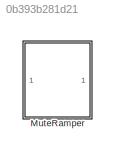
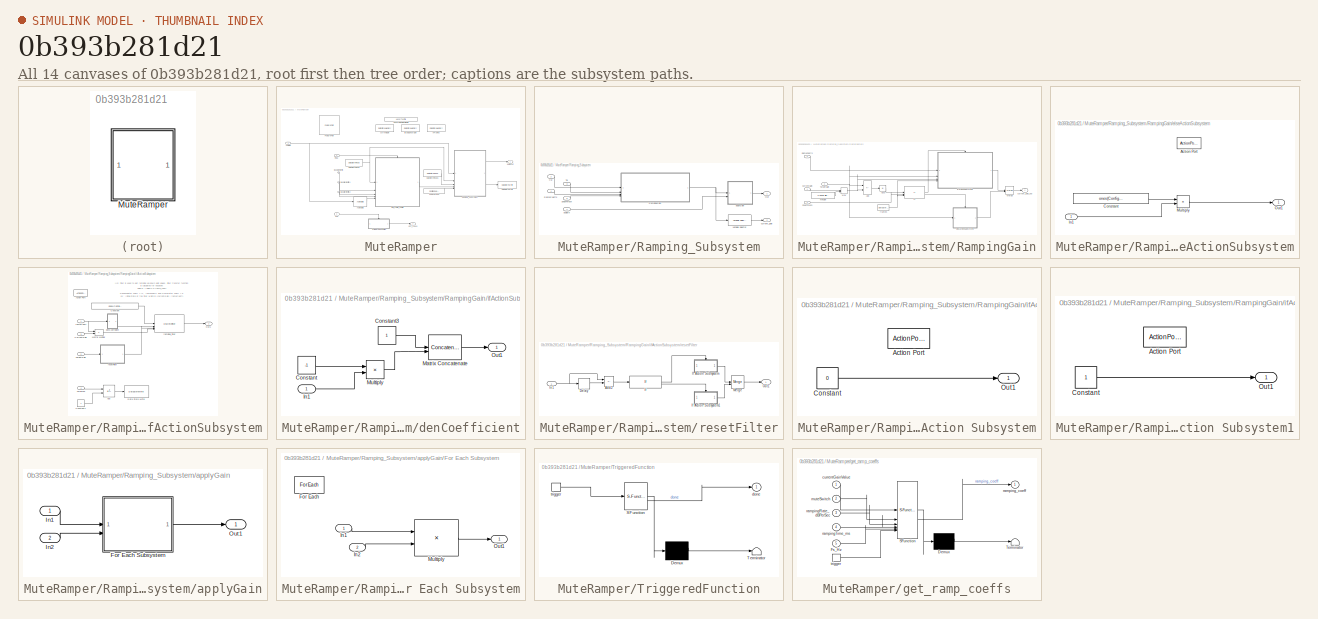
[diagram: thumbnail index - all 14 canvases of the model, root first then tree order]
MODEL slx_0b393b281d21
KIND library
CONFIG AbsTol = auto
CONFIG EnableMultiTasking = off
CONFIG FixedStep = auto
CONFIG MaxStep = auto
CONFIG MinStep = auto
CONFIG RelTol = 1e-3
CONFIG SampleTimeConstraint = Unconstrained
CONFIG SolverName = VariableStepAuto
CONFIG StartTime = 0.0
CONFIG StopTime = 10.0
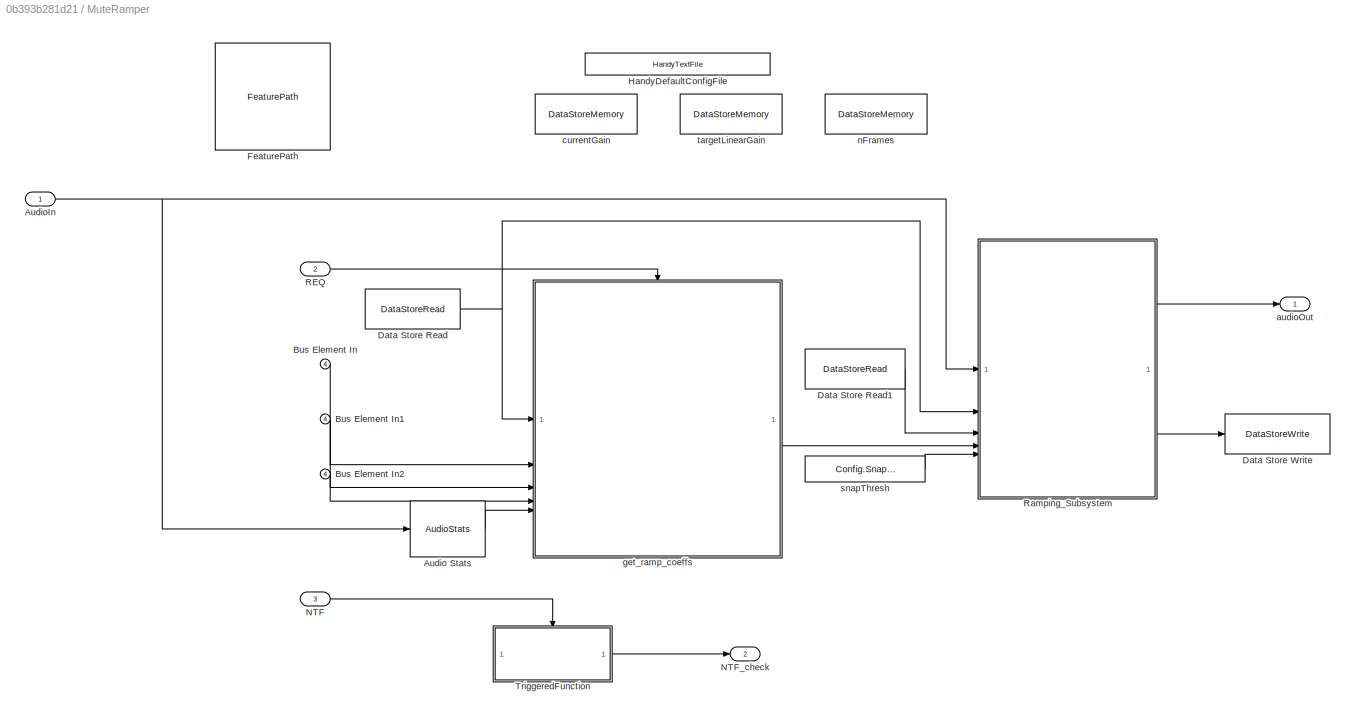
BLOCK [SubSystem] MuteRamper
BLOCK [Reference] MuteRamper/Audio Stats  REF=AudioStats/AudioStats
  SourceBlock = AudioStats/AudioStats
  SourceProductName = Bose Talaria
  SourceType = Talaria Audio Statistics
BLOCK [Inport] MuteRamper/AudioIn
BLOCK [Inport] MuteRamper/Bus Element In
  Port = 4
BLOCK [Inport] MuteRamper/Bus Element In1
  Port = 4
BLOCK [Inport] MuteRamper/Bus Element In2
  Port = 4
BLOCK [DataStoreRead] MuteRamper/Data Store Read
  DataStoreName = currentGain
  IndexOptions = Index vector (dialog)
  Indices = 1
  OutputSizes = 1
BLOCK [DataStoreRead] MuteRamper/Data Store Read1
  DataStoreName = targetLinearGain
  IndexOptions = Index vector (dialog)
  Indices = 1
  OutputSizes = 1
BLOCK [DataStoreWrite] MuteRamper/Data Store Write
  DataStoreName = currentGain
  IndexOptions = Index vector (dialog)
  Indices = 1
  OutputSizes = 1
BLOCK [Reference] MuteRamper/FeaturePath  REF=FeaturePath/FeaturePath
  SourceBlock = FeaturePath/FeaturePath
  SourceProductName = Bose Talaria
  SourceType = Talaria Feature Path
BLOCK [Reference] MuteRamper/HandyDefaultConfigFile  REF=HandyTextFile/HandyTextFile
  SourceBlock = HandyTextFile/HandyTextFile
  SourceProductName = Bose Talaria
  SourceType = Talaria Handy Text File
BLOCK [Inport] MuteRamper/NTF
  Port = 3
BLOCK [Outport] MuteRamper/NTF_check
  Port = 2
BLOCK [Inport] MuteRamper/REQ
  Port = 2
BLOCK [SubSystem] MuteRamper/Ramping_Subsystem
  TreatAsAtomicUnit = on
BLOCK [Inport] MuteRamper/Ramping_Subsystem/Cg
  Port = 2
BLOCK [Outport] MuteRamper/Ramping_Subsystem/Out
  VectorParamsAs1DForOutWhenUnconnected = off
BLOCK [Inport] MuteRamper/Ramping_Subsystem/RampCoeffs
  Port = 4
BLOCK [SubSystem] MuteRamper/Ramping_Subsystem/RampingGain
BLOCK [Abs] MuteRamper/Ramping_Subsystem/RampingGain/Abs3
  SaturateOnIntegerOverflow = off
BLOCK [Sum] MuteRamper/Ramping_Subsystem/RampingGain/Add
  IconShape = rectangular
  Inputs = +-
BLOCK [Inport] MuteRamper/Ramping_Subsystem/RampingGain/CurrentGain
BLOCK [If] MuteRamper/Ramping_Subsystem/RampingGain/If
  IfExpression = (u1>u2) & (u3>0)
  NumInputs = 3
BLOCK [MinMax] MuteRamper/Ramping_Subsystem/RampingGain/Max
  Function = max
  Inputs = 2
BLOCK [Merge] MuteRamper/Ramping_Subsystem/RampingGain/Merge
BLOCK [Inport] MuteRamper/Ramping_Subsystem/RampingGain/RampCoeffs
  Port = 3
BLOCK [Inport] MuteRamper/Ramping_Subsystem/RampingGain/SnapThresh
  Port = 4
BLOCK [Inport] MuteRamper/Ramping_Subsystem/RampingGain/TargetGain
  Port = 2
BLOCK [Outport] MuteRamper/Ramping_Subsystem/RampingGain/current_gain_out
  VectorParamsAs1DForOutWhenUnconnected = off
BLOCK [SubSystem] MuteRamper/Ramping_Subsystem/RampingGain/elseActionSubsystem
BLOCK [ActionPort] MuteRamper/Ramping_Subsystem/RampingGain/elseActionSubsystem/Action Port
BLOCK [Constant] MuteRamper/Ramping_Subsystem/RampingGain/elseActionSubsystem/Constant
  OutDataTypeStr = single
  Value = ones(Config.SamplesPerFrame,1)
  VectorParams1D = off
BLOCK [Inport] MuteRamper/Ramping_Subsystem/RampingGain/elseActionSubsystem/In1
BLOCK [Product] MuteRamper/Ramping_Subsystem/RampingGain/elseActionSubsystem/Multiply
BLOCK [Outport] MuteRamper/Ramping_Subsystem/RampingGain/elseActionSubsystem/Out1
  VectorParamsAs1DForOutWhenUnconnected = off
BLOCK [DataStoreRead] MuteRamper/Ramping_Subsystem/RampingGain/frames
  DataStoreName = nFrames
  IndexOptions = Index vector (dialog)
  Indices = 1
  OutputSizes = 1
BLOCK [SubSystem] MuteRamper/Ramping_Subsystem/RampingGain/ifActionSubsystem
BLOCK [ActionPort] MuteRamper/Ramping_Subsystem/RampingGain/ifActionSubsystem/Action Port
BLOCK [Sum] MuteRamper/Ramping_Subsystem/RampingGain/ifActionSubsystem/Add
  IconShape = rectangular
  Inputs = +-
BLOCK [Constant] MuteRamper/Ramping_Subsystem/RampingGain/ifActionSubsystem/Constant
  OutDataTypeStr = single
  Value = ones(Config.SamplesPerFrame,1)
  VectorParams1D = off
BLOCK [Constant] MuteRamper/Ramping_Subsystem/RampingGain/ifActionSubsystem/Constant1
  OutDataTypeStr = single
BLOCK [Inport] MuteRamper/Ramping_Subsystem/RampingGain/ifActionSubsystem/CurrentGain
  Port = 3
BLOCK [DataStoreWrite] MuteRamper/Ramping_Subsystem/RampingGain/ifActionSubsystem/Data Store Write
  DataStoreName = nFrames
  IndexOptions = Index vector (dialog)
  Indices = 1
  OutputSizes = 1
BLOCK [Product] MuteRamper/Ramping_Subsystem/RampingGain/ifActionSubsystem/Matrix Multiply
BLOCK [Outport] MuteRamper/Ramping_Subsystem/RampingGain/ifActionSubsystem/Out1
BLOCK [Inport] MuteRamper/Ramping_Subsystem/RampingGain/ifActionSubsystem/TargetGain
  Port = 2
BLOCK [SubSystem] MuteRamper/Ramping_Subsystem/RampingGain/ifActionSubsystem/denCoefficient
BLOCK [Constant] MuteRamper/Ramping_Subsystem/RampingGain/ifActionSubsystem/denCoefficient/Constant
  OutDataTypeStr = single
  Value = -1
BLOCK [Constant] MuteRamper/Ramping_Subsystem/RampingGain/ifActionSubsystem/denCoefficient/Constant3
  OutDataTypeStr = single
BLOCK [Inport] MuteRamper/Ramping_Subsystem/RampingGain/ifActionSubsystem/denCoefficient/In1
BLOCK [Concatenate] MuteRamper/Ramping_Subsystem/RampingGain/ifActionSubsystem/denCoefficient/Matrix Concatenate
  ConcatenateDimension = 2
  Mode = Multidimensional array
BLOCK [Product] MuteRamper/Ramping_Subsystem/RampingGain/ifActionSubsystem/denCoefficient/Multiply
BLOCK [Outport] MuteRamper/Ramping_Subsystem/RampingGain/ifActionSubsystem/denCoefficient/Out1
  VectorParamsAs1DForOutWhenUnconnected = off
BLOCK [Inport] MuteRamper/Ramping_Subsystem/RampingGain/ifActionSubsystem/nFrames
  Port = 4
BLOCK [Inport] MuteRamper/Ramping_Subsystem/RampingGain/ifActionSubsystem/rampCoeff
BLOCK [DiscreteFilter] MuteRamper/Ramping_Subsystem/RampingGain/ifActionSubsystem/ramping_filter
  Denominator = [1 -1.0003]
  DenominatorSource = Input port
  ExternalReset = Level hold
  FilterStructure = Direct form II transposed
  InitialStates = 1.0003
  InitialStatesSource = Input port
  InputPortMap = u0,p3,r7,p5
  InputProcessing = Columns as channels (frame based)
  Numerator = 0
  a0EqualsOne = on
BLOCK [SubSystem] MuteRamper/Ramping_Subsystem/RampingGain/ifActionSubsystem/resetFilter
BLOCK [Sum] MuteRamper/Ramping_Subsystem/RampingGain/ifActionSubsystem/resetFilter/Add2
  IconShape = rectangular
  Inputs = +-
BLOCK [Delay] MuteRamper/Ramping_Subsystem/RampingGain/ifActionSubsystem/resetFilter/Delay
  DelayLength = 1
  InputPortMap = u0
BLOCK [If] MuteRamper/Ramping_Subsystem/RampingGain/ifActionSubsystem/resetFilter/If
  IfExpression = u1 == 0
BLOCK [SubSystem] MuteRamper/Ramping_Subsystem/RampingGain/ifActionSubsystem/resetFilter/If Action Subsystem
  TreatAsAtomicUnit = on
BLOCK [ActionPort] MuteRamper/Ramping_Subsystem/RampingGain/ifActionSubsystem/resetFilter/If Action Subsystem/Action Port
BLOCK [Constant] MuteRamper/Ramping_Subsystem/RampingGain/ifActionSubsystem/resetFilter/If Action Subsystem/Constant
  OutDataTypeStr = boolean
  Value = 0
BLOCK [Outport] MuteRamper/Ramping_Subsystem/RampingGain/ifActionSubsystem/resetFilter/If Action Subsystem/Out1
  VectorParamsAs1DForOutWhenUnconnected = off
BLOCK [SubSystem] MuteRamper/Ramping_Subsystem/RampingGain/ifActionSubsystem/resetFilter/If Action Subsystem1
  TreatAsAtomicUnit = on
BLOCK [ActionPort] MuteRamper/Ramping_Subsystem/RampingGain/ifActionSubsystem/resetFilter/If Action Subsystem1/Action Port
BLOCK [Constant] MuteRamper/Ramping_Subsystem/RampingGain/ifActionSubsystem/resetFilter/If Action Subsystem1/Constant
  OutDataTypeStr = boolean
BLOCK [Outport] MuteRamper/Ramping_Subsystem/RampingGain/ifActionSubsystem/resetFilter/If Action Subsystem1/Out1
  VectorParamsAs1DForOutWhenUnconnected = off
BLOCK [Inport] MuteRamper/Ramping_Subsystem/RampingGain/ifActionSubsystem/resetFilter/In1
BLOCK [Merge] MuteRamper/Ramping_Subsystem/RampingGain/ifActionSubsystem/resetFilter/Merge
BLOCK [Outport] MuteRamper/Ramping_Subsystem/RampingGain/ifActionSubsystem/resetFilter/Out1
  VectorParamsAs1DForOutWhenUnconnected = off
BLOCK [Constant] MuteRamper/Ramping_Subsystem/RampingGain/minGain
  OutDataTypeStr = single
  Value = Config.SilentGainLinear
BLOCK [Inport] MuteRamper/Ramping_Subsystem/SnapThresh
  Port = 5
BLOCK [Inport] MuteRamper/Ramping_Subsystem/Tg
  Port = 3
BLOCK [Reference] MuteRamper/Ramping_Subsystem/Variable Selector  REF=dspindex/Variable
Selector
  SourceBlock = dspindex/Variable\nSelector
  SourceType = Variable Selector
BLOCK [SubSystem] MuteRamper/Ramping_Subsystem/applyGain
BLOCK [SubSystem] MuteRamper/Ramping_Subsystem/applyGain/For Each Subsystem
  TreatAsAtomicUnit = on
BLOCK [ForEach] MuteRamper/Ramping_Subsystem/applyGain/For Each Subsystem/For Each
  DisableCoverage = on
BLOCK [Inport] MuteRamper/Ramping_Subsystem/applyGain/For Each Subsystem/In1
  Partition = on
  PartitionDimension = 1
  PartitionOffset = 0
  PartitionWidth = 1
BLOCK [Inport] MuteRamper/Ramping_Subsystem/applyGain/For Each Subsystem/In2
  Partition = on
  PartitionDimension = 1
  PartitionOffset = 0
  PartitionWidth = 1
  Port = 2
BLOCK [Product] MuteRamper/Ramping_Subsystem/applyGain/For Each Subsystem/Multiply
  Multiplication = Matrix(*)
BLOCK [Outport] MuteRamper/Ramping_Subsystem/applyGain/For Each Subsystem/Out1
  ConcatenationDimension = 1
BLOCK [Inport] MuteRamper/Ramping_Subsystem/applyGain/In1
BLOCK [Inport] MuteRamper/Ramping_Subsystem/applyGain/In2
  Port = 2
BLOCK [Outport] MuteRamper/Ramping_Subsystem/applyGain/Out1
  VectorParamsAs1DForOutWhenUnconnected = off
BLOCK [Inport] MuteRamper/Ramping_Subsystem/audioIn
BLOCK [Outport] MuteRamper/Ramping_Subsystem/current_gain
  Port = 2
  VectorParamsAs1DForOutWhenUnconnected = off
BLOCK [SubSystem] MuteRamper/TriggeredFunction
  ErrorFcn = Stateflow.Translate.translate
  PermitHierarchicalResolution = ExplicitOnly
  SFBlockType = MATLAB Function
  TreatAsAtomicUnit = on
BLOCK [Demux] MuteRamper/TriggeredFunction/ Demux 
  Outputs = 1
BLOCK [S-Function] MuteRamper/TriggeredFunction/ SFunction 
  EnableBusSupport = off
  FunctionName = sf_sfun
  PortCounts = [1 2]
  SFcnIsStateOwnerBlock = off
  SFunctionDeploymentMode = off
  Tag = Stateflow S-Function 3
BLOCK [Terminator] MuteRamper/TriggeredFunction/ Terminator 
BLOCK [Outport] MuteRamper/TriggeredFunction/done
  VectorParamsAs1DForOutWhenUnconnected = off
BLOCK [TriggerPort] MuteRamper/TriggeredFunction/trigger
  ShowOutputPort = on
  StatesWhenEnabling = held
  TriggerType = function-call
  VariantControl = Variant
BLOCK [Outport] MuteRamper/audioOut
  VectorParamsAs1DForOutWhenUnconnected = off
BLOCK [DataStoreMemory] MuteRamper/currentGain
  DataStoreName = currentGain
  InitialValue = Config.DlgInitialGainLinear
  OutDataTypeStr = single
  ShowAdditionalParam = off
  SignalType = real
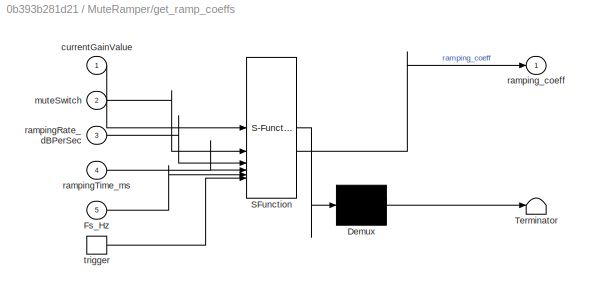
BLOCK [SubSystem] MuteRamper/get_ramp_coeffs
  ErrorFcn = Stateflow.Translate.translate
  PermitHierarchicalResolution = ExplicitOnly
  SFBlockType = MATLAB Function
  TreatAsAtomicUnit = on
BLOCK [Demux] MuteRamper/get_ramp_coeffs/ Demux 
  Outputs = 1
BLOCK [S-Function] MuteRamper/get_ramp_coeffs/ SFunction 
  EnableBusSupport = off
  FunctionName = sf_sfun
  Parameters = frameSize,silentGainLinear
  PortCounts = [6 2]
  SFcnIsStateOwnerBlock = off
  SFunctionDeploymentMode = off
  Tag = Stateflow S-Function 2
BLOCK [Terminator] MuteRamper/get_ramp_coeffs/ Terminator 
BLOCK [Inport] MuteRamper/get_ramp_coeffs/Fs_Hz
  Port = 5
BLOCK [Inport] MuteRamper/get_ramp_coeffs/currentGainValue
BLOCK [Inport] MuteRamper/get_ramp_coeffs/muteSwitch
  Port = 2
BLOCK [Inport] MuteRamper/get_ramp_coeffs/rampingRate_dBPerSec
  Port = 3
BLOCK [Inport] MuteRamper/get_ramp_coeffs/rampingTime_ms
  Port = 4
BLOCK [Outport] MuteRamper/get_ramp_coeffs/ramping_coeff
  VectorParamsAs1DForOutWhenUnconnected = off
BLOCK [TriggerPort] MuteRamper/get_ramp_coeffs/trigger
  ShowOutputPort = on
  StatesWhenEnabling = held
  TriggerType = function-call
  VariantControl = (inherit)
BLOCK [DataStoreMemory] MuteRamper/nFrames
  DataStoreName = nFrames
  OutDataTypeStr = single
  ShowAdditionalParam = off
  SignalType = real
BLOCK [Constant] MuteRamper/snapThresh
  OutDataTypeStr = single
  Value = Config.SnapThreshold
  VectorParams1D = off
BLOCK [DataStoreMemory] MuteRamper/targetLinearGain
  DataStoreName = targetLinearGain
  InitialValue = Config.DlgInitialGainLinear
  OutDataTypeStr = single
  ShowAdditionalParam = off
  SignalType = real
ANNOTATION MuteRamper/Ramping_Subsystem/RampingGain/ifActionSubsystem: IIR filter is used to get ramping up/down gain values. Filter transfer function is calculated for equation: gain(n) = gain(n-1)*ramp_coeff Denominator coeff = [1, -rampcoeff] and Numerator coeff = 0 x0 : Initial state of the filter which is (currentGain * rampCoeff) III : When target gain is updated through RTC, this signal will reset filter to initial state to serve new RTC request
LINE MuteRamper/Audio Stats:1 -> MuteRamper/get_ramp_coeffs:5
NET MuteRamper/AudioIn:1 -> MuteRamper/Audio Stats:1, MuteRamper/Ramping_Subsystem:1
LINE MuteRamper/Bus Element In1:1 -> MuteRamper/get_ramp_coeffs:3
LINE MuteRamper/Bus Element In2:1 -> MuteRamper/get_ramp_coeffs:4
LINE MuteRamper/Bus Element In:1 -> MuteRamper/get_ramp_coeffs:2
LINE MuteRamper/Data Store Read1:1 -> MuteRamper/Ramping_Subsystem:3
NET MuteRamper/Data Store Read:1 -> MuteRamper/Ramping_Subsystem:2, MuteRamper/get_ramp_coeffs:1
LINE MuteRamper/NTF:1 -> MuteRamper/TriggeredFunction:trigger
LINE MuteRamper/REQ:1 -> MuteRamper/get_ramp_coeffs:trigger
LINE MuteRamper/Ramping_Subsystem/Cg:1 -> MuteRamper/Ramping_Subsystem/RampingGain:1
LINE MuteRamper/Ramping_Subsystem/RampCoeffs:1 -> MuteRamper/Ramping_Subsystem/RampingGain:3
LINE MuteRamper/Ramping_Subsystem/RampingGain/Abs3:1 -> MuteRamper/Ramping_Subsystem/RampingGain/If:1
LINE MuteRamper/Ramping_Subsystem/RampingGain/Add:1 -> MuteRamper/Ramping_Subsystem/RampingGain/Abs3:1
LINE MuteRamper/Ramping_Subsystem/RampingGain/CurrentGain:1 -> MuteRamper/Ramping_Subsystem/RampingGain/Max:1
LINE MuteRamper/Ramping_Subsystem/RampingGain/If:1 -> MuteRamper/Ramping_Subsystem/RampingGain/ifActionSubsystem:ifaction
LINE MuteRamper/Ramping_Subsystem/RampingGain/If:2 -> MuteRamper/Ramping_Subsystem/RampingGain/elseActionSubsystem:ifaction
NET MuteRamper/Ramping_Subsystem/RampingGain/Max:1 -> MuteRamper/Ramping_Subsystem/RampingGain/Add:2, MuteRamper/Ramping_Subsystem/RampingGain/ifActionSubsystem:3
LINE MuteRamper/Ramping_Subsystem/RampingGain/Merge:1 -> MuteRamper/Ramping_Subsystem/RampingGain/current_gain_out:1
LINE MuteRamper/Ramping_Subsystem/RampingGain/RampCoeffs:1 -> MuteRamper/Ramping_Subsystem/RampingGain/ifActionSubsystem:1
LINE MuteRamper/Ramping_Subsystem/RampingGain/SnapThresh:1 -> MuteRamper/Ramping_Subsystem/RampingGain/If:2
NET MuteRamper/Ramping_Subsystem/RampingGain/TargetGain:1 -> MuteRamper/Ramping_Subsystem/RampingGain/Add:1, MuteRamper/Ramping_Subsystem/RampingGain/elseActionSubsystem:1, MuteRamper/Ramping_Subsystem/RampingGain/ifActionSubsystem:2
LINE MuteRamper/Ramping_Subsystem/RampingGain/elseActionSubsystem/Constant:1 -> MuteRamper/Ramping_Subsystem/RampingGain/elseActionSubsystem/Multiply:1
LINE MuteRamper/Ramping_Subsystem/RampingGain/elseActionSubsystem/In1:1 -> MuteRamper/Ramping_Subsystem/RampingGain/elseActionSubsystem/Multiply:2
LINE MuteRamper/Ramping_Subsystem/RampingGain/elseActionSubsystem/Multiply:1 -> MuteRamper/Ramping_Subsystem/RampingGain/elseActionSubsystem/Out1:1
LINE MuteRamper/Ramping_Subsystem/RampingGain/elseActionSubsystem:1 -> MuteRamper/Ramping_Subsystem/RampingGain/Merge:2
NET MuteRamper/Ramping_Subsystem/RampingGain/frames:1 -> MuteRamper/Ramping_Subsystem/RampingGain/If:3, MuteRamper/Ramping_Subsystem/RampingGain/ifActionSubsystem:4
LINE MuteRamper/Ramping_Subsystem/RampingGain/ifActionSubsystem/Add:1 -> MuteRamper/Ramping_Subsystem/RampingGain/ifActionSubsystem/Data Store Write:1
LINE MuteRamper/Ramping_Subsystem/RampingGain/ifActionSubsystem/Constant1:1 -> MuteRamper/Ramping_Subsystem/RampingGain/ifActionSubsystem/Add:2
LINE MuteRamper/Ramping_Subsystem/RampingGain/ifActionSubsystem/Constant:1 -> MuteRamper/Ramping_Subsystem/RampingGain/ifActionSubsystem/ramping_filter:1
LINE MuteRamper/Ramping_Subsystem/RampingGain/ifActionSubsystem/CurrentGain:1 -> MuteRamper/Ramping_Subsystem/RampingGain/ifActionSubsystem/Matrix Multiply:2
LINE MuteRamper/Ramping_Subsystem/RampingGain/ifActionSubsystem/Matrix Multiply:1 -> MuteRamper/Ramping_Subsystem/RampingGain/ifActionSubsystem/ramping_filter:4
LINE MuteRamper/Ramping_Subsystem/RampingGain/ifActionSubsystem/TargetGain:1 -> MuteRamper/Ramping_Subsystem/RampingGain/ifActionSubsystem/resetFilter:1
LINE MuteRamper/Ramping_Subsystem/RampingGain/ifActionSubsystem/denCoefficient/Constant3:1 -> MuteRamper/Ramping_Subsystem/RampingGain/ifActionSubsystem/denCoefficient/Matrix Concatenate:1
LINE MuteRamper/Ramping_Subsystem/RampingGain/ifActionSubsystem/denCoefficient/Constant:1 -> MuteRamper/Ramping_Subsystem/RampingGain/ifActionSubsystem/denCoefficient/Multiply:1
LINE MuteRamper/Ramping_Subsystem/RampingGain/ifActionSubsystem/denCoefficient/In1:1 -> MuteRamper/Ramping_Subsystem/RampingGain/ifActionSubsystem/denCoefficient/Multiply:2
LINE MuteRamper/Ramping_Subsystem/RampingGain/ifActionSubsystem/denCoefficient/Matrix Concatenate:1 -> MuteRamper/Ramping_Subsystem/RampingGain/ifActionSubsystem/denCoefficient/Out1:1
LINE MuteRamper/Ramping_Subsystem/RampingGain/ifActionSubsystem/denCoefficient/Multiply:1 -> MuteRamper/Ramping_Subsystem/RampingGain/ifActionSubsystem/denCoefficient/Matrix Concatenate:2
LINE MuteRamper/Ramping_Subsystem/RampingGain/ifActionSubsystem/denCoefficient:1 -> MuteRamper/Ramping_Subsystem/RampingGain/ifActionSubsystem/ramping_filter:2
LINE MuteRamper/Ramping_Subsystem/RampingGain/ifActionSubsystem/nFrames:1 -> MuteRamper/Ramping_Subsystem/RampingGain/ifActionSubsystem/Add:1
NET MuteRamper/Ramping_Subsystem/RampingGain/ifActionSubsystem/rampCoeff:1 -> MuteRamper/Ramping_Subsystem/RampingGain/ifActionSubsystem/Matrix Multiply:1, MuteRamper/Ramping_Subsystem/RampingGain/ifActionSubsystem/denCoefficient:1
LINE MuteRamper/Ramping_Subsystem/RampingGain/ifActionSubsystem/ramping_filter:1 -> MuteRamper/Ramping_Subsystem/RampingGain/ifActionSubsystem/Out1:1
LINE MuteRamper/Ramping_Subsystem/RampingGain/ifActionSubsystem/resetFilter/Add2:1 -> MuteRamper/Ramping_Subsystem/RampingGain/ifActionSubsystem/resetFilter/If:1
LINE MuteRamper/Ramping_Subsystem/RampingGain/ifActionSubsystem/resetFilter/Delay:1 -> MuteRamper/Ramping_Subsystem/RampingGain/ifActionSubsystem/resetFilter/Add2:2
LINE MuteRamper/Ramping_Subsystem/RampingGain/ifActionSubsystem/resetFilter/If Action Subsystem/Constant:1 -> MuteRamper/Ramping_Subsystem/RampingGain/ifActionSubsystem/resetFilter/If Action Subsystem/Out1:1
LINE MuteRamper/Ramping_Subsystem/RampingGain/ifActionSubsystem/resetFilter/If Action Subsystem1/Constant:1 -> MuteRamper/Ramping_Subsystem/RampingGain/ifActionSubsystem/resetFilter/If Action Subsystem1/Out1:1
LINE MuteRamper/Ramping_Subsystem/RampingGain/ifActionSubsystem/resetFilter/If Action Subsystem1:1 -> MuteRamper/Ramping_Subsystem/RampingGain/ifActionSubsystem/resetFilter/Merge:2
LINE MuteRamper/Ramping_Subsystem/RampingGain/ifActionSubsystem/resetFilter/If Action Subsystem:1 -> MuteRamper/Ramping_Subsystem/RampingGain/ifActionSubsystem/resetFilter/Merge:1
LINE MuteRamper/Ramping_Subsystem/RampingGain/ifActionSubsystem/resetFilter/If:1 -> MuteRamper/Ramping_Subsystem/RampingGain/ifActionSubsystem/resetFilter/If Action Subsystem:ifaction
LINE MuteRamper/Ramping_Subsystem/RampingGain/ifActionSubsystem/resetFilter/If:2 -> MuteRamper/Ramping_Subsystem/RampingGain/ifActionSubsystem/resetFilter/If Action Subsystem1:ifaction
NET MuteRamper/Ramping_Subsystem/RampingGain/ifActionSubsystem/resetFilter/In1:1 -> MuteRamper/Ramping_Subsystem/RampingGain/ifActionSubsystem/resetFilter/Add2:1, MuteRamper/Ramping_Subsystem/RampingGain/ifActionSubsystem/resetFilter/Delay:1
LINE MuteRamper/Ramping_Subsystem/RampingGain/ifActionSubsystem/resetFilter/Merge:1 -> MuteRamper/Ramping_Subsystem/RampingGain/ifActionSubsystem/resetFilter/Out1:1
LINE MuteRamper/Ramping_Subsystem/RampingGain/ifActionSubsystem/resetFilter:1 -> MuteRamper/Ramping_Subsystem/RampingGain/ifActionSubsystem/ramping_filter:3
LINE MuteRamper/Ramping_Subsystem/RampingGain/ifActionSubsystem:1 -> MuteRamper/Ramping_Subsystem/RampingGain/Merge:1
LINE MuteRamper/Ramping_Subsystem/RampingGain/minGain:1 -> MuteRamper/Ramping_Subsystem/RampingGain/Max:2
NET MuteRamper/Ramping_Subsystem/RampingGain:1 -> MuteRamper/Ramping_Subsystem/Variable Selector:1, MuteRamper/Ramping_Subsystem/applyGain:1
LINE MuteRamper/Ramping_Subsystem/SnapThresh:1 -> MuteRamper/Ramping_Subsystem/RampingGain:4
LINE MuteRamper/Ramping_Subsystem/Tg:1 -> MuteRamper/Ramping_Subsystem/RampingGain:2
LINE MuteRamper/Ramping_Subsystem/Variable Selector:1 -> MuteRamper/Ramping_Subsystem/current_gain:1
LINE MuteRamper/Ramping_Subsystem/applyGain/For Each Subsystem/In1:1 -> MuteRamper/Ramping_Subsystem/applyGain/For Each Subsystem/Multiply:1
LINE MuteRamper/Ramping_Subsystem/applyGain/For Each Subsystem/In2:1 -> MuteRamper/Ramping_Subsystem/applyGain/For Each Subsystem/Multiply:2
LINE MuteRamper/Ramping_Subsystem/applyGain/For Each Subsystem/Multiply:1 -> MuteRamper/Ramping_Subsystem/applyGain/For Each Subsystem/Out1:1
LINE MuteRamper/Ramping_Subsystem/applyGain/For Each Subsystem:1 -> MuteRamper/Ramping_Subsystem/applyGain/Out1:1
LINE MuteRamper/Ramping_Subsystem/applyGain/In1:1 -> MuteRamper/Ramping_Subsystem/applyGain/For Each Subsystem:1
LINE MuteRamper/Ramping_Subsystem/applyGain/In2:1 -> MuteRamper/Ramping_Subsystem/applyGain/For Each Subsystem:2
LINE MuteRamper/Ramping_Subsystem/applyGain:1 -> MuteRamper/Ramping_Subsystem/Out:1
LINE MuteRamper/Ramping_Subsystem/audioIn:1 -> MuteRamper/Ramping_Subsystem/applyGain:2
LINE MuteRamper/Ramping_Subsystem:1 -> MuteRamper/audioOut:1
LINE MuteRamper/Ramping_Subsystem:2 -> MuteRamper/Data Store Write:1
LINE MuteRamper/TriggeredFunction:1 -> MuteRamper/NTF_check:1
LINE MuteRamper/get_ramp_coeffs:1 -> MuteRamper/Ramping_Subsystem:4
LINE MuteRamper/snapThresh:1 -> MuteRamper/Ramping_Subsystem:5
note: NET lines group one-source signal fan-out (src -> all destinations, sorted); 1:1 wires keep LINE
CHART MuteRamper/get_ramp_coeffs states=1 transitions=1
  STATE_LABEL 'eML_blk_kernel()'
  STATE_LABEL 'SCRIPT:\nfunction ramping_coeff = fcn(currentGainValue, muteSwitch, rampingRate_dBPerSec,rampingTime_ms, Fs_Hz, silentGainLinear, frameSize)\n\nglobal targetLinearGain\nglobal nFrames\ntargetLinearGain = single(1.0);\n\nif muteSwitch\n    targetLinearGain = single(max(0, silentGainLinear));\nend\n\n% % Nudge the gain values a bit if they are sitting at zero.\n% % If current gain is zero, replace with a value ...<+1729ch>'
CHART MuteRamper/TriggeredFunction states=1 transitions=1
  STATE_LABEL 'eML_blk_kernel()'
  STATE_LABEL 'SCRIPT:\nfunction done = NotificationCheck()\n% Function to check whether the ramp has completed. \n% If so, send out TRUE\n\nglobal targetLinearGain;\nglobal currentGain;\n\n% Assume the work is complete until proven otherwise\ndone = true;\nif (targetLinearGain ~= currentGain)\n   done = false; % just proved otherwise\nend\n\n\n'
CHART  states=0 transitions=0
CHART  states=0 transitions=0
